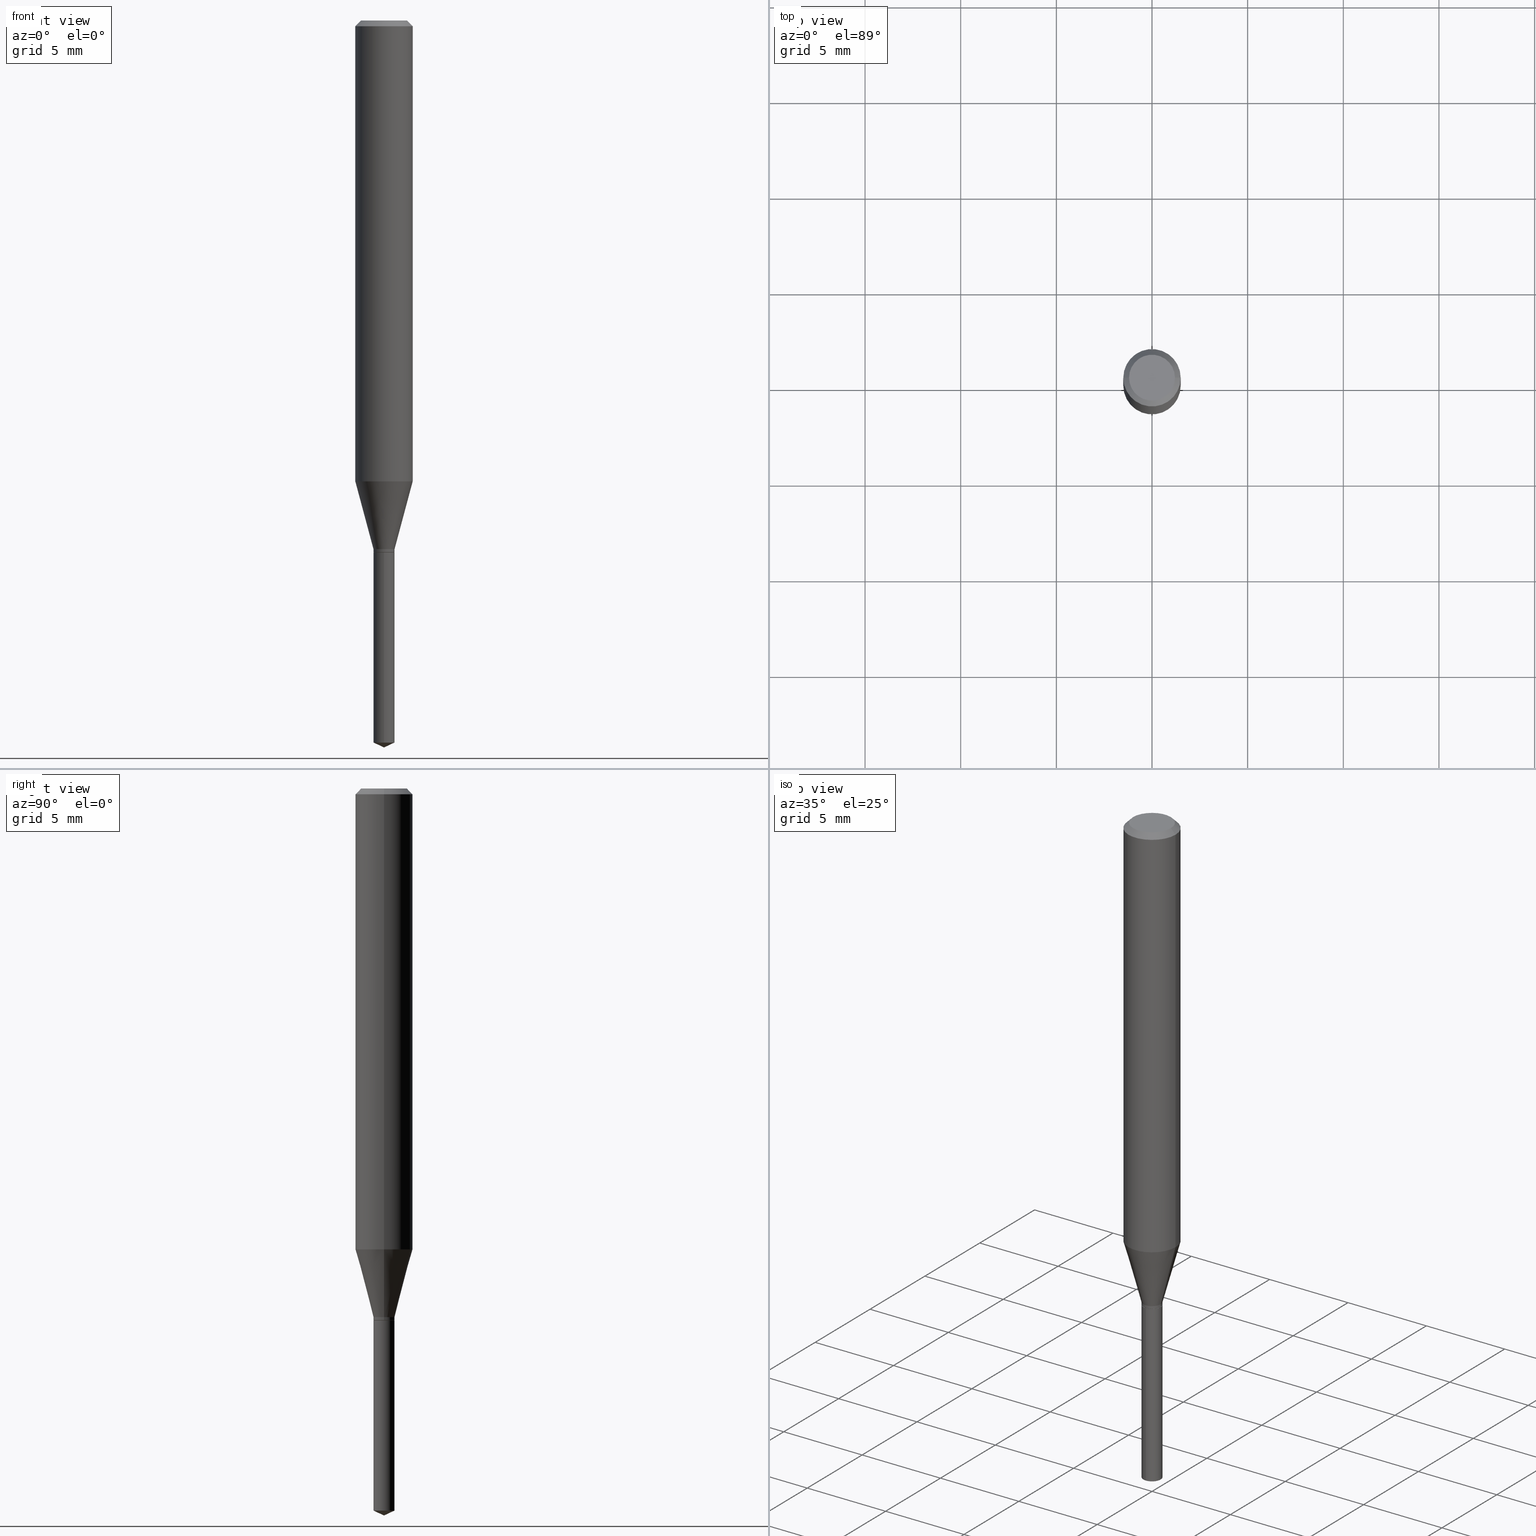
[diagram: canonical four-view strip — front | top / right | iso, engineering-drawing reading convention]
A machine part, canonical four-view strip (front | top / right | iso — engineering-drawing reading convention). The complete STEP part file that produces these views, byte-faithful:
ISO-10303-21;
HEADER;
FILE_DESCRIPTION (( 'STEP AP203' ),
    '1' );
FILE_NAME ('08333.STEP',
    '2024-04-24T14:23:46',
    ( '' ),
    ( '' ),
    'SwSTEP 2.0',
    'SolidWorks 2023',
    '' );
FILE_SCHEMA (( 'CONFIG_CONTROL_DESIGN' ));
ENDSEC;

DATA;
#1 = APPROVAL_STATUS ( 'not_yet_approved' ) ;
#2 = EDGE_CURVE ( 'NONE', #137, #91, #488, .T. ) ;
#3 = PERSON_AND_ORGANIZATION ( #108, #419 ) ;
#4 = FACE_OUTER_BOUND ( 'NONE', #165, .T. ) ;
#5 = CARTESIAN_POINT ( 'NONE',  ( -0.05905000000000005383, 4.195754854663395423E-16, -2.904631170795524694E-30 ) ) ;
#6 = AXIS2_PLACEMENT_3D ( 'NONE', #15, #19, #281 ) ;
#7 = ADVANCED_FACE ( 'NONE', ( #378 ), #336, .F. ) ;
#8 = AXIS2_PLACEMENT_3D ( 'NONE', #22, #325, #136 ) ;
#9 = ORIENTED_EDGE ( 'NONE', *, *, #173, .F. ) ;
#10 = FACE_OUTER_BOUND ( 'NONE', #17, .T. ) ;
#11 = ORIENTED_EDGE ( 'NONE', *, *, #428, .F. ) ;
#12 = SECURITY_CLASSIFICATION_LEVEL ( 'unclassified' ) ;
#13 = DIRECTION ( 'NONE',  ( 1.000000000000000000, -6.982962677686277755E-15, 0.000000000000000000 ) ) ;
#14 = ORIENTED_EDGE ( 'NONE', *, *, #412, .F. ) ;
#15 = CARTESIAN_POINT ( 'NONE',  ( 2.888098660104664642E-31, -4.123439461173780879E-17, -0.01181000000000007565 ) ) ;
#16 = CIRCLE ( 'NONE', #293, 0.02114999999999999172 ) ;
#17 = EDGE_LOOP ( 'NONE', ( #71, #283 ) ) ;
#18 = APPROVAL_PERSON_ORGANIZATION ( #456, #320, #145 ) ;
#19 = DIRECTION ( 'NONE',  ( 2.445468806185136597E-29, -3.491481338843145583E-15, -1.000000000000000000 ) ) ;
#20 = EDGE_CURVE ( 'NONE', #117, #267, #410, .T. ) ;
#21 = ORIENTED_EDGE ( 'NONE', *, *, #412, .T. ) ;
#22 = CARTESIAN_POINT ( 'NONE',  ( 2.676565608369632355E-29, -3.821426325363822773E-15, -1.094500000000000028 ) ) ;
#23 = DIRECTION ( 'NONE',  ( -2.445468806185136597E-29, 3.491481338843145583E-15, 1.000000000000000000 ) ) ;
#24 = EDGE_CURVE ( 'NONE', #91, #248, #341, .T. ) ;
#25 = DIRECTION ( 'NONE',  ( -2.445468806185136877E-29, 3.491481338843145188E-15, 1.000000000000000000 ) ) ;
#26 = AXIS2_PLACEMENT_3D ( 'NONE', #369, #258, #266 ) ;
#27 = DESIGN_CONTEXT ( 'detailed design', #288, 'design' ) ;
#28 = DIRECTION ( 'NONE',  ( 1.000000000000000000, -6.982962677686278543E-15, 0.000000000000000000 ) ) ;
#29 = DIRECTION ( 'NONE',  ( -2.445468806185136597E-29, 3.491481338843145583E-15, 1.000000000000000000 ) ) ;
#30 = APPROVAL ( #87, 'UNSPECIFIED' ) ;
#31 = DIRECTION ( 'NONE',  ( 1.000000000000000000, 0.000000000000000000, 0.000000000000000000 ) ) ;
#32 = VECTOR ( 'NONE', #482, 39.37007874015748854 ) ;
#33 = ORIENTED_EDGE ( 'NONE', *, *, #464, .T. ) ;
#34 = CARTESIAN_POINT ( 'NONE',  ( 4.132873053354867254E-48, -5.900647395337818946E-34, -1.690012582823346072E-19 ) ) ;
#35 = DIRECTION ( 'NONE',  ( 1.000000000000000000, -6.982962677686266711E-15, 4.876185090822587894E-29 ) ) ;
#36 = ORIENTED_EDGE ( 'NONE', *, *, #122, .F. ) ;
#37 = CC_DESIGN_PERSON_AND_ORGANIZATION_ASSIGNMENT ( #485, #301, ( #307 ) ) ;
#38 = CARTESIAN_POINT ( 'NONE',  ( 8.265746106709734507E-48, -1.180129479067563789E-33, -3.380025165646692144E-19 ) ) ;
#39 = DIRECTION ( 'NONE',  ( -1.000000000000000000, 6.982962677686265922E-15, -4.876176775795935793E-29 ) ) ;
#40 = AXIS2_PLACEMENT_3D ( 'NONE', #232, #384, #47 ) ;
#41 = VECTOR ( 'NONE', #25, 39.37007874015748143 ) ;
#42 = LINE ( 'NONE', #147, #131 ) ;
#43 = PERSON_AND_ORGANIZATION ( #108, #419 ) ;
#44 = CARTESIAN_POINT ( 'NONE',  ( -0.02114999999999999172, -3.668497309576451157E-15, -1.094500000000000028 ) ) ;
#45 = ADVANCED_FACE ( 'NONE', ( #4 ), #101, .T. ) ;
#46 = PERSON_AND_ORGANIZATION ( #108, #419 ) ;
#47 = DIRECTION ( 'NONE',  ( 1.000000000000000000, -6.982962677686277755E-15, 0.000000000000000000 ) ) ;
#48 = AXIS2_PLACEMENT_3D ( 'NONE', #205, #323, #160 ) ;
#49 = AXIS2_PLACEMENT_3D ( 'NONE', #109, #255, #68 ) ;
#50 = EDGE_LOOP ( 'NONE', ( #231, #418, #324, #299 ) ) ;
#51 = APPROVAL_STATUS ( 'not_yet_approved' ) ;
#52 = DIRECTION ( 'NONE',  ( 1.000000000000000000, -6.982962677686267499E-15, 4.876176775795935232E-29 ) ) ;
#53 = EDGE_LOOP ( 'NONE', ( #227, #14, #257, #217 ) ) ;
#54 = DATE_AND_TIME ( #385, #240 ) ;
#55 = ORIENTED_EDGE ( 'NONE', *, *, #142, .F. ) ;
#56 = LINE ( 'NONE', #199, #221 ) ;
#57 = ORIENTED_EDGE ( 'NONE', *, *, #215, .F. ) ;
#58 = EDGE_CURVE ( 'NONE', #186, #140, #297, .T. ) ;
#59 = CARTESIAN_POINT ( 'NONE',  ( 0.04724000000000000421, -3.852183633974369838E-16, -3.380025165621689721E-19 ) ) ;
#60 = CONICAL_SURFACE ( 'NONE', #103, 0.02114999999999999172, 0.7853981633972519916 ) ;
#61 = ORIENTED_EDGE ( 'NONE', *, *, #251, .T. ) ;
#62 = CARTESIAN_POINT ( 'NONE',  ( 2.676565608369631794E-29, -3.821426325363822773E-15, -1.094499999999999806 ) ) ;
#63 = ORIENTED_EDGE ( 'NONE', *, *, #334, .F. ) ;
#64 = DIRECTION ( 'NONE',  ( -2.445468806185136597E-29, 3.491481338843145583E-15, 1.000000000000000000 ) ) ;
#65 = ADVANCED_FACE ( 'NONE', ( #259 ), #78, .T. ) ;
#66 = CARTESIAN_POINT ( 'NONE',  ( 0.000000000000000000, 0.000000000000000000, 0.000000000000000000 ) ) ;
#67 = VECTOR ( 'NONE', #342, 39.37007874015748143 ) ;
#68 = DIRECTION ( 'NONE',  ( 1.000000000000000000, -6.982962677686268288E-15, 0.000000000000000000 ) ) ;
#69 = VECTOR ( 'NONE', #375, 39.37007874015748143 ) ;
#70 = DIRECTION ( 'NONE',  ( 1.000000000000000000, -6.982962677686277755E-15, 0.000000000000000000 ) ) ;
#71 = ORIENTED_EDGE ( 'NONE', *, *, #115, .T. ) ;
#72 = ORIENTED_EDGE ( 'NONE', *, *, #449, .F. ) ;
#73 = EDGE_CURVE ( 'NONE', #176, #91, #380, .T. ) ;
#74 = DIRECTION ( 'NONE',  ( -1.000000000000000000, 6.982962677686265922E-15, 0.000000000000000000 ) ) ;
#75 = CARTESIAN_POINT ( 'NONE',  ( -9.261705871415894043E-28, 1.322399773465276608E-13, 37.87397874015748300 ) ) ;
#76 = AXIS2_PLACEMENT_3D ( 'NONE', #242, #332, #28 ) ;
#77 = AXIS2_PLACEMENT_3D ( 'NONE', #38, #113, #35 ) ;
#78 = CYLINDRICAL_SURFACE ( 'NONE', #253, 0.02164999999999996788 ) ;
#79 = EDGE_CURVE ( 'NONE', #152, #455, #406, .T. ) ;
#80 = DIMENSIONAL_EXPONENTS ( 1.000000000000000000, 0.000000000000000000, 0.000000000000000000, 0.000000000000000000, 0.000000000000000000, 0.000000000000000000, 0.000000000000000000 ) ;
#81 = CARTESIAN_POINT ( 'NONE',  ( 0.02114999999999999172, -3.969115985996887497E-15, -1.094500000000000028 ) ) ;
#82 = CARTESIAN_POINT ( 'NONE',  ( 0.02114999999999999172, -3.969115985996887497E-15, -1.094500000000000028 ) ) ;
#83 = CARTESIAN_POINT ( 'NONE',  ( -0.02164999999999996788, 1.538325022920614620E-16, -1.064949447040185625E-30 ) ) ;
#84 = AXIS2_PLACEMENT_3D ( 'NONE', #403, #409, #175 ) ;
#85 = ADVANCED_FACE ( 'NONE', ( #469 ), #306, .T. ) ;
#86 = FACE_OUTER_BOUND ( 'NONE', #50, .T. ) ;
#87 = APPROVAL_STATUS ( 'not_yet_approved' ) ;
#88 = CARTESIAN_POINT ( 'NONE',  ( 1.538325022920980454E-16, 0.02164999999999617578, -1.094500000000000028 ) ) ;
#89 = ORIENTED_EDGE ( 'NONE', *, *, #73, .F. ) ;
#90 = PERSON_AND_ORGANIZATION_ROLE ( 'classification_officer' ) ;
#91 = VERTEX_POINT ( 'NONE', #318 ) ;
#92 = CARTESIAN_POINT ( 'NONE',  ( 2.676565608369631794E-29, -3.821426325363822773E-15, -1.094499999999999806 ) ) ;
#93 = ORIENTED_EDGE ( 'NONE', *, *, #444, .T. ) ;
#94 = DATE_AND_TIME ( #159, #116 ) ;
#95 = DIRECTION ( 'NONE',  ( 1.000000000000000000, -6.982962677686269077E-15, 0.000000000000000000 ) ) ;
#96 = CC_DESIGN_PERSON_AND_ORGANIZATION_ASSIGNMENT ( #383, #90, ( #371 ) ) ;
#97 = VERTEX_POINT ( 'NONE', #88 ) ;
#98 = CARTESIAN_POINT ( 'NONE',  ( 0.000000000000000000, 0.000000000000000000, 0.000000000000000000 ) ) ;
#99 = ORIENTED_EDGE ( 'NONE', *, *, #339, .T. ) ;
#100 = CARTESIAN_POINT ( 'NONE',  ( -2.259394599611891373E-29, -1.089000228060149958E-14, -1.094500000000000028 ) ) ;
#101 = CONICAL_SURFACE ( 'NONE', #370, 84.42940631927777417, 1.134464013796331550 ) ;
#102 = ORIENTED_EDGE ( 'NONE', *, *, #464, .F. ) ;
#103 = AXIS2_PLACEMENT_3D ( 'NONE', #292, #178, #174 ) ;
#104 = EDGE_CURVE ( 'NONE', #267, #140, #430, .T. ) ;
#105 = FACE_OUTER_BOUND ( 'NONE', #411, .T. ) ;
#106 = CARTESIAN_POINT ( 'NONE',  ( 0.05905000000000005383, -4.123439461173744271E-16, 2.879382386107502672E-30 ) ) ;
#107 = CYLINDRICAL_SURFACE ( 'NONE', #354, 0.02164999999999999564 ) ;
#108 = PERSON ( 'UNSPECIFIED', 'UNSPECIFIED', 'UNSPECIFIED', ('UNSPECIFIED'), ('UNSPECIFIED'), ('UNSPECIFIED') ) ;
#109 = CARTESIAN_POINT ( 'NONE',  ( 2.319334703774938561E-29, -3.311395269602319629E-15, -0.9484212997969236891 ) ) ;
#110 = CC_DESIGN_SECURITY_CLASSIFICATION ( #371, ( #401 ) ) ;
#111 = ADVANCED_FACE ( 'NONE', ( #313 ), #235, .T. ) ;
#112 = DIRECTION ( 'NONE',  ( -0.7071067811865454633, 2.468850131082235367E-15, -0.7071067811865495711 ) ) ;
#113 = DIRECTION ( 'NONE',  ( -2.445468806185136597E-29, 3.491481338843145583E-15, 1.000000000000000000 ) ) ;
#114 = CIRCLE ( 'NONE', #76, 0.02164999999999996788 ) ;
#115 = EDGE_CURVE ( 'NONE', #373, #97, #483, .T. ) ;
#116 = LOCAL_TIME ( 10, 23, 46.00000000000000000, #128 ) ;
#117 = VERTEX_POINT ( 'NONE', #59 ) ;
#118 = LINE ( 'NONE', #372, #69 ) ;
#119 = CARTESIAN_POINT ( 'NONE',  ( -0.02114999999999999172, -3.671146536750561569E-15, -1.094500000000000028 ) ) ;
#120 = DIRECTION ( 'NONE',  ( 1.000000000000000000, -6.982962677686268288E-15, 0.000000000000000000 ) ) ;
#121 = DIRECTION ( 'NONE',  ( 2.438088387897960049E-29, -3.491481338843145188E-15, -1.000000000000000000 ) ) ;
#122 = EDGE_CURVE ( 'NONE', #137, #425, #124, .T. ) ;
#123 = DIRECTION ( 'NONE',  ( -2.445468806185136597E-29, 3.491481338843145583E-15, 1.000000000000000000 ) ) ;
#124 = CIRCLE ( 'NONE', #261, 0.02114999999999999172 ) ;
#125 = CARTESIAN_POINT ( 'NONE',  ( -0.04724000000000000421, 3.504923541997677355E-16, -3.380025165670481712E-19 ) ) ;
#126 = CARTESIAN_POINT ( 'NONE',  ( -1.511811419718712709E-16, -0.02165000000000518246, -1.486004439200944605 ) ) ;
#127 = EDGE_LOOP ( 'NONE', ( #413, #481, #89, #357 ) ) ;
#128 = COORDINATED_UNIVERSAL_TIME_OFFSET ( 5, 0, .BEHIND. ) ;
#129 = DIRECTION ( 'NONE',  ( 6.982962677686265922E-15, 1.000000000000000000, -3.491575962694140016E-15 ) ) ;
#130 = ADVANCED_FACE ( 'NONE', ( #315 ), #363, .T. ) ;
#131 = VECTOR ( 'NONE', #451, 39.37007874015748143 ) ;
#132 = DIRECTION ( 'NONE',  ( -6.982962677686265922E-15, -1.000000000000000000, 0.000000000000000000 ) ) ;
#133 = VERTEX_POINT ( 'NONE', #422 ) ;
#134 = DIRECTION ( 'NONE',  ( 1.000000000000000000, -6.982962677686265922E-15, 4.876176775795935793E-29 ) ) ;
#135 = ADVANCED_FACE ( 'NONE', ( #86 ), #168, .T. ) ;
#136 = DIRECTION ( 'NONE',  ( 1.000000000000000000, -6.982962677686269077E-15, 0.000000000000000000 ) ) ;
#137 = VERTEX_POINT ( 'NONE', #44 ) ;
#138 = FACE_OUTER_BOUND ( 'NONE', #467, .T. ) ;
#139 = DIRECTION ( 'NONE',  ( 1.000000000000000000, -6.982962677686266711E-15, 4.876185090822587894E-29 ) ) ;
#140 = VERTEX_POINT ( 'NONE', #201 ) ;
#141 = DIRECTION ( 'NONE',  ( -2.445468806185136597E-29, 3.491481338843145583E-15, 1.000000000000000000 ) ) ;
#142 = EDGE_CURVE ( 'NONE', #455, #97, #56, .T. ) ;
#143 = AXIS2_PLACEMENT_3D ( 'NONE', #92, #172, #397 ) ;
#144 = AXIS2_PLACEMENT_3D ( 'NONE', #404, #29, #70 ) ;
#145 = APPROVAL_ROLE ( '' ) ;
#146 = DIRECTION ( 'NONE',  ( -6.982962677686266711E-15, -1.000000000000000000, 3.520397390770310692E-15 ) ) ;
#147 = CARTESIAN_POINT ( 'NONE',  ( -0.02164999999999997135, -3.644899194369281124E-15, -1.088000000000000078 ) ) ;
#148 = DIRECTION ( 'NONE',  ( -2.445402730703145379E-29, 3.491575962694140016E-15, 1.000000000000000000 ) ) ;
#149 = MANIFOLD_SOLID_BREP ( 'Body-Move/Copy2[2]', #335 ) ;
#150 = CLOSED_SHELL ( 'NONE', ( #435, #130, #45, #228, #196 ) ) ;
#151 = AXIS2_PLACEMENT_3D ( 'NONE', #62, #358, #285 ) ;
#152 = VERTEX_POINT ( 'NONE', #126 ) ;
#153 = APPROVAL_ROLE ( '' ) ;
#154 = PRODUCT_DEFINITION ( 'UNKNOWN', '', #401, #27 ) ;
#155 = CARTESIAN_POINT ( 'NONE',  ( 2.319334703774938561E-29, -3.311395269602319629E-15, -0.9484212997969236891 ) ) ;
#156 = VECTOR ( 'NONE', #459, 39.37007874015748143 ) ;
#157 = APPROVAL_PERSON_ORGANIZATION ( #46, #484, #153 ) ;
#158 = ORIENTED_EDGE ( 'NONE', *, *, #374, .F. ) ;
#159 = CALENDAR_DATE ( 2024, 24, 4 ) ;
#160 = DIRECTION ( 'NONE',  ( 1.000000000000000000, -6.982962677686278543E-15, 0.000000000000000000 ) ) ;
#161 = VERTEX_POINT ( 'NONE', #345 ) ;
#162 = SHAPE_DEFINITION_REPRESENTATION ( #233, #470 ) ;
#163 = EDGE_CURVE ( 'NONE', #274, #140, #276, .T. ) ;
#164 = DIRECTION ( 'NONE',  ( 2.445402730703145099E-29, -3.491575962694140016E-15, -1.000000000000000000 ) ) ;
#165 = EDGE_LOOP ( 'NONE', ( #11, #61, #203 ) ) ;
#166 = DATE_AND_TIME ( #275, #453 ) ;
#167 = DIRECTION ( 'NONE',  ( 1.000000000000000000, -6.982962677686268288E-15, 0.000000000000000000 ) ) ;
#168 = CONICAL_SURFACE ( 'NONE', #40, 0.02164999999999997135, 0.2617993877991497964 ) ;
#169 = AXIS2_PLACEMENT_3D ( 'NONE', #98, #123, #244 ) ;
#170 = AXIS2_PLACEMENT_3D ( 'NONE', #381, #191, #74 ) ;
#171 = EDGE_LOOP ( 'NONE', ( #220, #99, #429, #9 ) ) ;
#172 = DIRECTION ( 'NONE',  ( -2.445402730703145379E-29, 3.491575962694140016E-15, 1.000000000000000000 ) ) ;
#173 = EDGE_CURVE ( 'NONE', #274, #161, #452, .T. ) ;
#174 = DIRECTION ( 'NONE',  ( 1.000000000000000000, -6.982962677686269077E-15, 0.000000000000000000 ) ) ;
#175 = DIRECTION ( 'NONE',  ( -6.982962677686265922E-15, -1.000000000000000000, 0.000000000000000000 ) ) ;
#176 = VERTEX_POINT ( 'NONE', #462 ) ;
#177 = LOCAL_TIME ( 10, 23, 46.00000000000000000, #312 ) ;
#178 = DIRECTION ( 'NONE',  ( -2.445468806185136597E-29, 3.491481338843145583E-15, 1.000000000000000000 ) ) ;
#179 = CC_DESIGN_PERSON_AND_ORGANIZATION_ASSIGNMENT ( #237, #426, ( #401 ) ) ;
#180 = CARTESIAN_POINT ( 'NONE',  ( 2.660670061129428738E-29, -3.798731696661342438E-15, -1.088000000000000078 ) ) ;
#181 = ORIENTED_EDGE ( 'NONE', *, *, #458, .F. ) ;
#182 = FACE_OUTER_BOUND ( 'NONE', #360, .T. ) ;
#183 = AXIS2_PLACEMENT_3D ( 'NONE', #155, #310, #347 ) ;
#184 = APPROVAL_PERSON_ORGANIZATION ( #234, #30, #198 ) ;
#185 = FACE_OUTER_BOUND ( 'NONE', #353, .T. ) ;
#186 = VERTEX_POINT ( 'NONE', #125 ) ;
#187 = EDGE_CURVE ( 'NONE', #133, #248, #379, .T. ) ;
#188 = CARTESIAN_POINT ( 'NONE',  ( 0.000000000000000000, 0.000000000000000000, 0.000000000000000000 ) ) ;
#189 =( NAMED_UNIT ( * ) SI_UNIT ( $, .STERADIAN. ) SOLID_ANGLE_UNIT ( ) );
#190 = ORIENTED_EDGE ( 'NONE', *, *, #163, .F. ) ;
#191 = DIRECTION ( 'NONE',  ( 2.445468806185136597E-29, -3.491481338843145583E-15, -1.000000000000000000 ) ) ;
#192 = VECTOR ( 'NONE', #112, 39.37007874015748143 ) ;
#193 = CONICAL_SURFACE ( 'NONE', #441, 0.02164999999999997135, 0.2617993877991497964 ) ;
#194 = CARTESIAN_POINT ( 'NONE',  ( 0.05905000000000000526, -4.463468013801467941E-16, -0.01181000000000007565 ) ) ;
#195 = APPROVAL_DATE_TIME ( #94, #320 ) ;
#196 = ADVANCED_FACE ( 'NONE', ( #10 ), #391, .F. ) ;
#197 = EDGE_LOOP ( 'NONE', ( #21, #93 ) ) ;
#198 = APPROVAL_ROLE ( '' ) ;
#199 = CARTESIAN_POINT ( 'NONE',  ( 1.538325022920883819E-16, 0.02164999999999617578, -1.094500000000000028 ) ) ;
#200 = CALENDAR_DATE ( 2024, 24, 4 ) ;
#201 = CARTESIAN_POINT ( 'NONE',  ( -0.05905000000000000526, -1.256739346640688792E-15, -0.01181000000000007565 ) ) ;
#202 = EDGE_CURVE ( 'NONE', #425, #137, #16, .T. ) ;
#203 = ORIENTED_EDGE ( 'NONE', *, *, #246, .F. ) ;
#204 = APPROVAL_DATE_TIME ( #308, #484 ) ;
#205 = CARTESIAN_POINT ( 'NONE',  ( 2.675342873966538993E-29, -3.819680584694400481E-15, -1.093999999999999861 ) ) ;
#206 = CARTESIAN_POINT ( 'NONE',  ( 2.660670061129428738E-29, -3.798731696661342438E-15, -1.088000000000000078 ) ) ;
#207 = EDGE_LOOP ( 'NONE', ( #241, #225, #438 ) ) ;
#208 = CARTESIAN_POINT ( 'NONE',  ( 2.676565608369632355E-29, -3.821426325363822773E-15, -1.094500000000000028 ) ) ;
#209 = CIRCLE ( 'NONE', #84, 0.02164999999999999564 ) ;
#210 = ORIENTED_EDGE ( 'NONE', *, *, #104, .F. ) ;
#211 = CARTESIAN_POINT ( 'NONE',  ( 2.676565608369631794E-29, -3.821426325363822773E-15, -1.094499999999999806 ) ) ;
#212 = ORIENTED_EDGE ( 'NONE', *, *, #202, .F. ) ;
#213 = DIRECTION ( 'NONE',  ( -2.445402730703145379E-29, 3.491575962694140016E-15, 1.000000000000000000 ) ) ;
#214 = FACE_OUTER_BOUND ( 'NONE', #171, .T. ) ;
#215 = EDGE_CURVE ( 'NONE', #91, #176, #114, .T. ) ;
#216 = DIRECTION ( 'NONE',  ( -2.445468806185136597E-29, 3.491481338843145583E-15, 1.000000000000000000 ) ) ;
#217 = ORIENTED_EDGE ( 'NONE', *, *, #449, .T. ) ;
#218 = DIRECTION ( 'NONE',  ( -6.328713451373419077E-15, -0.9063077870366557098, 0.4226182617406868403 ) ) ;
#219 = ORIENTED_EDGE ( 'NONE', *, *, #73, .T. ) ;
#220 = ORIENTED_EDGE ( 'NONE', *, *, #477, .F. ) ;
#221 = VECTOR ( 'NONE', #349, 39.37007874015748143 ) ;
#222 = CIRCLE ( 'NONE', #49, 0.05905000000000010241 ) ;
#223 = MECHANICAL_CONTEXT ( 'NONE', #260, 'mechanical' ) ;
#224 =( CONVERSION_BASED_UNIT ( 'INCH', #487 ) LENGTH_UNIT ( ) NAMED_UNIT ( #80 ) );
#225 = ORIENTED_EDGE ( 'NONE', *, *, #428, .T. ) ;
#226 = DIRECTION ( 'NONE',  ( -2.445402730703145379E-29, 3.491575962694140016E-15, 1.000000000000000000 ) ) ;
#227 = ORIENTED_EDGE ( 'NONE', *, *, #20, .F. ) ;
#228 = ADVANCED_FACE ( 'NONE', ( #138 ), #107, .T. ) ;
#229 = AXIS2_PLACEMENT_3D ( 'NONE', #269, #386, #355 ) ;
#230 = CYLINDRICAL_SURFACE ( 'NONE', #26, 0.02164999999999999564 ) ;
#231 = ORIENTED_EDGE ( 'NONE', *, *, #187, .T. ) ;
#232 = CARTESIAN_POINT ( 'NONE',  ( 2.660670061129428738E-29, -3.798731696661342438E-15, -1.088000000000000078 ) ) ;
#233 = PRODUCT_DEFINITION_SHAPE ( 'NONE', 'NONE',  #154 ) ;
#234 = PERSON_AND_ORGANIZATION ( #108, #419 ) ;
#235 = CYLINDRICAL_SURFACE ( 'NONE', #169, 0.05905000000000005383 ) ;
#236 = ORIENTED_EDGE ( 'NONE', *, *, #173, .T. ) ;
#237 = PERSON_AND_ORGANIZATION ( #108, #419 ) ;
#238 = DIRECTION ( 'NONE',  ( -2.445468806185136877E-29, 3.491481338843145188E-15, 1.000000000000000000 ) ) ;
#239 = AXIS2_PLACEMENT_3D ( 'NONE', #368, #141, #472 ) ;
#240 = LOCAL_TIME ( 10, 23, 46.00000000000000000, #270 ) ;
#241 = ORIENTED_EDGE ( 'NONE', *, *, #251, .F. ) ;
#242 = CARTESIAN_POINT ( 'NONE',  ( 2.675342873966538993E-29, -3.819680584694400481E-15, -1.093999999999999861 ) ) ;
#243 = COORDINATED_UNIVERSAL_TIME_OFFSET ( 5, 0, .BEHIND. ) ;
#244 = DIRECTION ( 'NONE',  ( 1.000000000000000000, -6.982962677686266711E-15, 4.876176775795935793E-29 ) ) ;
#245 = ORIENTED_EDGE ( 'NONE', *, *, #302, .T. ) ;
#246 = EDGE_CURVE ( 'NONE', #455, #152, #209, .T. ) ;
#247 = CYLINDRICAL_SURFACE ( 'NONE', #460, 0.02164999999999996788 ) ;
#248 = VERTEX_POINT ( 'NONE', #361 ) ;
#249 = CARTESIAN_POINT ( 'NONE',  ( 0.02164999999999997135, -3.949912838633250169E-15, -1.088000000000000078 ) ) ;
#250 = FACE_OUTER_BOUND ( 'NONE', #395, .T. ) ;
#251 = EDGE_CURVE ( 'NONE', #322, #152, #290, .T. ) ;
#252 = DIRECTION ( 'NONE',  ( 0.2588190451025211281, 1.565188264969623940E-15, 0.9659258262890682012 ) ) ;
#253 = AXIS2_PLACEMENT_3D ( 'NONE', #188, #338, #52 ) ;
#254 = VECTOR ( 'NONE', #252, 39.37007874015748143 ) ;
#255 = DIRECTION ( 'NONE',  ( -2.445468806185136597E-29, 3.491481338843145583E-15, 1.000000000000000000 ) ) ;
#256 = CC_DESIGN_PERSON_AND_ORGANIZATION_ASSIGNMENT ( #43, #389, ( #401 ) ) ;
#257 = ORIENTED_EDGE ( 'NONE', *, *, #58, .T. ) ;
#258 = DIRECTION ( 'NONE',  ( -2.445402730703145379E-29, 3.491575962694140016E-15, 1.000000000000000000 ) ) ;
#259 = FACE_OUTER_BOUND ( 'NONE', #471, .T. ) ;
#260 = APPLICATION_CONTEXT ( 'configuration controlled 3d designs of mechanical parts and assemblies' ) ;
#261 = AXIS2_PLACEMENT_3D ( 'NONE', #208, #424, #465 ) ;
#262 = CIRCLE ( 'NONE', #77, 0.04724000000000000421 ) ;
#263 = CARTESIAN_POINT ( 'NONE',  ( -1.511811419718808852E-16, -0.02165000000000381897, -1.094499999999999806 ) ) ;
#264 = CARTESIAN_POINT ( 'NONE',  ( 1.538325022920979468E-16, 0.02164999999999480187, -1.486004439200944605 ) ) ;
#265 = ADVANCED_FACE ( 'NONE', ( #250 ), #365, .T. ) ;
#266 = DIRECTION ( 'NONE',  ( -6.982962677686265922E-15, -1.000000000000000000, 6.309117768277745325E-15 ) ) ;
#267 = VERTEX_POINT ( 'NONE', #476 ) ;
#268 = PERSON_AND_ORGANIZATION_ROLE ( 'creator' ) ;
#269 = CARTESIAN_POINT ( 'NONE',  ( -9.261705871415894043E-28, 1.322399773465276608E-13, 37.87397874015748300 ) ) ;
#270 = COORDINATED_UNIVERSAL_TIME_OFFSET ( 5, 0, .BEHIND. ) ;
#271 = PRODUCT_RELATED_PRODUCT_CATEGORY ( 'detail', '', ( #307 ) ) ;
#272 = DIRECTION ( 'NONE',  ( -2.445468806185136597E-29, 3.491481338843145583E-15, 1.000000000000000000 ) ) ;
#273 = UNCERTAINTY_MEASURE_WITH_UNIT (LENGTH_MEASURE( 1.000000000000000082E-05 ), #224, 'distance_accuracy_value', 'NONE');
#274 = VERTEX_POINT ( 'NONE', #284 ) ;
#275 = CALENDAR_DATE ( 2024, 24, 4 ) ;
#276 = LINE ( 'NONE', #5, #328 ) ;
#277 = ORIENTED_EDGE ( 'NONE', *, *, #24, .T. ) ;
#278 = CARTESIAN_POINT ( 'NONE',  ( 2.676565608369632355E-29, -3.821426325363822773E-15, -1.094500000000000028 ) ) ;
#279 = AXIS2_PLACEMENT_3D ( 'NONE', #298, #304, #31 ) ;
#280 = EDGE_LOOP ( 'NONE', ( #350, #314, #305, #57 ) ) ;
#281 = DIRECTION ( 'NONE',  ( -1.000000000000000000, 6.982962677686265922E-15, 0.000000000000000000 ) ) ;
#282 = ADVANCED_FACE ( 'NONE', ( #405 ), #60, .T. ) ;
#283 = ORIENTED_EDGE ( 'NONE', *, *, #374, .T. ) ;
#284 = CARTESIAN_POINT ( 'NONE',  ( -0.05905000000000010241, -2.891819784135979347E-15, -0.9484212997969236891 ) ) ;
#285 = DIRECTION ( 'NONE',  ( -6.982962677686265922E-15, -1.000000000000000000, 6.309117768277745325E-15 ) ) ;
#286 = AXIS2_PLACEMENT_3D ( 'NONE', #466, #164, #129 ) ;
#287 = AXIS2_PLACEMENT_3D ( 'NONE', #337, #416, #120 ) ;
#288 = APPLICATION_CONTEXT ( 'configuration controlled 3d designs of mechanical parts and assemblies' ) ;
#289 = ADVANCED_FACE ( 'NONE', ( #214 ), #193, .T. ) ;
#290 = LINE ( 'NONE', #327, #388 ) ;
#291 = DIRECTION ( 'NONE',  ( -2.438088387897960049E-29, 3.491481338843145188E-15, 1.000000000000000000 ) ) ;
#292 = CARTESIAN_POINT ( 'NONE',  ( 2.676565608369632355E-29, -3.821426325363822773E-15, -1.094500000000000028 ) ) ;
#293 = AXIS2_PLACEMENT_3D ( 'NONE', #278, #432, #95 ) ;
#294 = CONICAL_SURFACE ( 'NONE', #8, 0.02114999999999999172, 0.7853981633972519916 ) ;
#295 = LINE ( 'NONE', #333, #32 ) ;
#296 =( LENGTH_UNIT ( ) NAMED_UNIT ( * ) SI_UNIT ( $, .METRE. ) );
#297 = LINE ( 'NONE', #450, #192 ) ;
#298 = CARTESIAN_POINT ( 'NONE',  ( 0.000000000000000000, 0.000000000000000000, 0.000000000000000000 ) ) ;
#299 = ORIENTED_EDGE ( 'NONE', *, *, #399, .F. ) ;
#300 = LOCAL_TIME ( 10, 23, 46.00000000000000000, #317 ) ;
#301 = PERSON_AND_ORGANIZATION_ROLE ( 'design_owner' ) ;
#302 = EDGE_CURVE ( 'NONE', #161, #274, #222, .T. ) ;
#303 = ORIENTED_EDGE ( 'NONE', *, *, #104, .T. ) ;
#304 = DIRECTION ( 'NONE',  ( 0.000000000000000000, 0.000000000000000000, 1.000000000000000000 ) ) ;
#305 = ORIENTED_EDGE ( 'NONE', *, *, #420, .T. ) ;
#306 = CONICAL_SURFACE ( 'NONE', #6, 0.05905000000000000526, 0.7853981633974453924 ) ;
#307 = PRODUCT ( '08333', '08333', '', ( #223 ) ) ;
#308 = DATE_AND_TIME ( #200, #300 ) ;
#309 = VECTOR ( 'NONE', #226, 39.37007874015748143 ) ;
#310 = DIRECTION ( 'NONE',  ( -2.445468806185136597E-29, 3.491481338843145583E-15, 1.000000000000000000 ) ) ;
#311 = ORIENTED_EDGE ( 'NONE', *, *, #24, .F. ) ;
#312 = COORDINATED_UNIVERSAL_TIME_OFFSET ( 5, 0, .BEHIND. ) ;
#313 = FACE_OUTER_BOUND ( 'NONE', #376, .T. ) ;
#314 = ORIENTED_EDGE ( 'NONE', *, *, #122, .T. ) ;
#315 = FACE_OUTER_BOUND ( 'NONE', #207, .T. ) ;
#316 = ORIENTED_EDGE ( 'NONE', *, *, #334, .T. ) ;
#317 = COORDINATED_UNIVERSAL_TIME_OFFSET ( 5, 0, .BEHIND. ) ;
#318 = CARTESIAN_POINT ( 'NONE',  ( -0.02164999999999996788, -3.655373638385810145E-15, -1.093999999999999861 ) ) ;
#319 = VECTOR ( 'NONE', #486, 39.37007874015748143 ) ;
#320 = APPROVAL ( #1, 'UNSPECIFIED' ) ;
#321 =( GEOMETRIC_REPRESENTATION_CONTEXT ( 3 ) GLOBAL_UNCERTAINTY_ASSIGNED_CONTEXT ( ( #273 ) ) GLOBAL_UNIT_ASSIGNED_CONTEXT ( ( #224, #417, #189 ) ) REPRESENTATION_CONTEXT ( 'NONE', 'WORKASPACE' ) );
#322 = VERTEX_POINT ( 'NONE', #437 ) ;
#323 = DIRECTION ( 'NONE',  ( -2.445468806185136597E-29, 3.491481338843145583E-15, 1.000000000000000000 ) ) ;
#324 = ORIENTED_EDGE ( 'NONE', *, *, #302, .F. ) ;
#325 = DIRECTION ( 'NONE',  ( -2.445468806185136597E-29, 3.491481338843145583E-15, 1.000000000000000000 ) ) ;
#326 = ORIENTED_EDGE ( 'NONE', *, *, #20, .T. ) ;
#327 = CARTESIAN_POINT ( 'NONE',  ( 3.658567025404975087E-29, -5.223746797786701947E-15, -1.496099999999999985 ) ) ;
#328 = VECTOR ( 'NONE', #238, 39.37007874015748143 ) ;
#329 = CIRCLE ( 'NONE', #468, 0.04724000000000000421 ) ;
#330 = LINE ( 'NONE', #249, #254 ) ;
#331 = ORIENTED_EDGE ( 'NONE', *, *, #187, .F. ) ;
#332 = DIRECTION ( 'NONE',  ( -2.445468806185136597E-29, 3.491481338843145583E-15, 1.000000000000000000 ) ) ;
#333 = CARTESIAN_POINT ( 'NONE',  ( 3.658712932950369103E-29, -5.223539666176875291E-15, -1.496099999999999985 ) ) ;
#334 = EDGE_CURVE ( 'NONE', #161, #267, #475, .T. ) ;
#335 = CLOSED_SHELL ( 'NONE', ( #282, #85, #265, #135, #65, #367, #289, #111, #473, #7, #359, #392 ) ) ;
#336 = PLANE ( 'NONE',  #490 ) ;
#337 = CARTESIAN_POINT ( 'NONE',  ( 2.888098660104664642E-31, -4.123439461173780879E-17, -0.01181000000000007565 ) ) ;
#338 = DIRECTION ( 'NONE',  ( -2.445468806185136597E-29, 3.491481338843145583E-15, 1.000000000000000000 ) ) ;
#339 = EDGE_CURVE ( 'NONE', #248, #133, #356, .T. ) ;
#340 = CC_DESIGN_APPROVAL ( #484, ( #371 ) ) ;
#341 = LINE ( 'NONE', #83, #67 ) ;
#342 = DIRECTION ( 'NONE',  ( -2.445468806185136877E-29, 3.491481338843145188E-15, 1.000000000000000000 ) ) ;
#343 = CC_DESIGN_PERSON_AND_ORGANIZATION_ASSIGNMENT ( #3, #268, ( #154 ) ) ;
#344 = DATE_TIME_ROLE ( 'classification_date' ) ;
#345 = CARTESIAN_POINT ( 'NONE',  ( 0.05905000000000010241, -3.723739215719694549E-15, -0.9484212997969236891 ) ) ;
#346 = VECTOR ( 'NONE', #415, 39.37007874015748143 ) ;
#347 = DIRECTION ( 'NONE',  ( 1.000000000000000000, -6.982962677686268288E-15, 0.000000000000000000 ) ) ;
#348 = ORIENTED_EDGE ( 'NONE', *, *, #444, .F. ) ;
#349 = DIRECTION ( 'NONE',  ( -2.445402730703145379E-29, 3.491575962694140016E-15, 1.000000000000000000 ) ) ;
#350 = ORIENTED_EDGE ( 'NONE', *, *, #2, .F. ) ;
#351 = CC_DESIGN_DATE_AND_TIME_ASSIGNMENT ( #421, #461, ( #154 ) ) ;
#352 = CARTESIAN_POINT ( 'NONE',  ( 3.633951633074026465E-29, -5.188393814565889832E-15, -1.486004439200944605 ) ) ;
#353 = EDGE_LOOP ( 'NONE', ( #382, #433, #402, #102 ) ) ;
#354 = AXIS2_PLACEMENT_3D ( 'NONE', #211, #213, #480 ) ;
#355 = DIRECTION ( 'NONE',  ( -6.982962677686266711E-15, -1.000000000000000000, 3.520397390770310692E-15 ) ) ;
#356 = CIRCLE ( 'NONE', #144, 0.02164999999999997135 ) ;
#357 = ORIENTED_EDGE ( 'NONE', *, *, #420, .F. ) ;
#358 = DIRECTION ( 'NONE',  ( -2.445402730703145379E-29, 3.491575962694140016E-15, 1.000000000000000000 ) ) ;
#359 = ADVANCED_FACE ( 'NONE', ( #105 ), #442, .F. ) ;
#360 = EDGE_LOOP ( 'NONE', ( #311, #463, #479, #436 ) ) ;
#361 = CARTESIAN_POINT ( 'NONE',  ( -0.02164999999999997135, -3.655373638385810145E-15, -1.088000000000000078 ) ) ;
#362 = FACE_OUTER_BOUND ( 'NONE', #280, .T. ) ;
#363 = CONICAL_SURFACE ( 'NONE', #229, 84.42940631927777417, 1.134464013796331550 ) ;
#364 = CC_DESIGN_APPROVAL ( #30, ( #401 ) ) ;
#365 = CYLINDRICAL_SURFACE ( 'NONE', #239, 0.05905000000000005383 ) ;
#366 = EDGE_LOOP ( 'NONE', ( #348, #326, #303, #393 ) ) ;
#367 = ADVANCED_FACE ( 'NONE', ( #182 ), #247, .T. ) ;
#368 = CARTESIAN_POINT ( 'NONE',  ( 0.000000000000000000, 0.000000000000000000, 0.000000000000000000 ) ) ;
#369 = CARTESIAN_POINT ( 'NONE',  ( 2.676565608369631794E-29, -3.821426325363822773E-15, -1.094499999999999806 ) ) ;
#370 = AXIS2_PLACEMENT_3D ( 'NONE', #75, #148, #146 ) ;
#371 = SECURITY_CLASSIFICATION ( '', '', #12 ) ;
#372 = CARTESIAN_POINT ( 'NONE',  ( 0.02164999999999996788, -1.511811419719074599E-16, 1.055692271959818387E-30 ) ) ;
#373 = VERTEX_POINT ( 'NONE', #400 ) ;
#374 = EDGE_CURVE ( 'NONE', #97, #373, #414, .T. ) ;
#375 = DIRECTION ( 'NONE',  ( -2.445468806185136877E-29, 3.491481338843145188E-15, 1.000000000000000000 ) ) ;
#376 = EDGE_LOOP ( 'NONE', ( #190, #236, #316, #72 ) ) ;
#377 = FACE_OUTER_BOUND ( 'NONE', #53, .T. ) ;
#378 = FACE_OUTER_BOUND ( 'NONE', #197, .T. ) ;
#379 = CIRCLE ( 'NONE', #446, 0.02164999999999997135 ) ;
#380 = CIRCLE ( 'NONE', #48, 0.02164999999999996788 ) ;
#381 = CARTESIAN_POINT ( 'NONE',  ( 2.888098660104664642E-31, -4.123439461173780879E-17, -0.01181000000000007565 ) ) ;
#382 = ORIENTED_EDGE ( 'NONE', *, *, #79, .T. ) ;
#383 = PERSON_AND_ORGANIZATION ( #108, #419 ) ;
#384 = DIRECTION ( 'NONE',  ( -2.445468806185136597E-29, 3.491481338843145583E-15, 1.000000000000000000 ) ) ;
#385 = CALENDAR_DATE ( 2024, 24, 4 ) ;
#386 = DIRECTION ( 'NONE',  ( -2.445402730703145379E-29, 3.491575962694140016E-15, 1.000000000000000000 ) ) ;
#387 = ORIENTED_EDGE ( 'NONE', *, *, #246, .T. ) ;
#388 = VECTOR ( 'NONE', #218, 39.37007874015748854 ) ;
#389 = PERSON_AND_ORGANIZATION_ROLE ( 'design_supplier' ) ;
#390 = CC_DESIGN_APPROVAL ( #320, ( #154 ) ) ;
#391 = PLANE ( 'NONE',  #286 ) ;
#392 = ADVANCED_FACE ( 'NONE', ( #362 ), #294, .T. ) ;
#393 = ORIENTED_EDGE ( 'NONE', *, *, #58, .F. ) ;
#394 = CARTESIAN_POINT ( 'NONE',  ( 2.888098660104664642E-31, -4.123439461173780879E-17, -0.01181000000000007565 ) ) ;
#395 = EDGE_LOOP ( 'NONE', ( #245, #457, #210, #63 ) ) ;
#396 = APPROVAL_DATE_TIME ( #166, #30 ) ;
#397 = DIRECTION ( 'NONE',  ( -6.982962677686265922E-15, -1.000000000000000000, 6.309117768277745325E-15 ) ) ;
#398 = AXIS2_PLACEMENT_3D ( 'NONE', #352, #427, #132 ) ;
#399 = EDGE_CURVE ( 'NONE', #133, #161, #330, .T. ) ;
#400 = CARTESIAN_POINT ( 'NONE',  ( -1.511811419718808852E-16, -0.02165000000000381897, -1.094499999999999806 ) ) ;
#401 = PRODUCT_DEFINITION_FORMATION_WITH_SPECIFIED_SOURCE ( 'ANY', '', #307, .NOT_KNOWN. ) ;
#402 = ORIENTED_EDGE ( 'NONE', *, *, #115, .F. ) ;
#403 = CARTESIAN_POINT ( 'NONE',  ( 3.633951633074026465E-29, -5.188393814565889832E-15, -1.486004439200944605 ) ) ;
#404 = CARTESIAN_POINT ( 'NONE',  ( 2.660670061129428738E-29, -3.798731696661342438E-15, -1.088000000000000078 ) ) ;
#405 = FACE_OUTER_BOUND ( 'NONE', #127, .T. ) ;
#406 = CIRCLE ( 'NONE', #398, 0.02164999999999999564 ) ;
#407 = CONICAL_SURFACE ( 'NONE', #170, 0.05905000000000000526, 0.7853981633974453924 ) ;
#408 = CC_DESIGN_DATE_AND_TIME_ASSIGNMENT ( #54, #344, ( #371 ) ) ;
#409 = DIRECTION ( 'NONE',  ( -2.445402730703145379E-29, 3.491575962694140016E-15, 1.000000000000000000 ) ) ;
#410 = LINE ( 'NONE', #194, #319 ) ;
#411 = EDGE_LOOP ( 'NONE', ( #212, #36 ) ) ;
#412 = EDGE_CURVE ( 'NONE', #186, #117, #329, .T. ) ;
#413 = ORIENTED_EDGE ( 'NONE', *, *, #202, .T. ) ;
#414 = CIRCLE ( 'NONE', #151, 0.02164999999999999564 ) ;
#415 = DIRECTION ( 'NONE',  ( 0.7071067811864086838, -2.468850131080802401E-15, 0.7071067811866863506 ) ) ;
#416 = DIRECTION ( 'NONE',  ( -2.445468806185136597E-29, 3.491481338843145583E-15, 1.000000000000000000 ) ) ;
#417 =( NAMED_UNIT ( * ) PLANE_ANGLE_UNIT ( ) SI_UNIT ( $, .RADIAN. ) );
#418 = ORIENTED_EDGE ( 'NONE', *, *, #477, .T. ) ;
#419 = ORGANIZATION ( 'UNSPECIFIED', 'UNSPECIFIED', '' ) ;
#420 = EDGE_CURVE ( 'NONE', #425, #176, #443, .T. ) ;
#421 = DATE_AND_TIME ( #423, #177 ) ;
#422 = CARTESIAN_POINT ( 'NONE',  ( 0.02164999999999997135, -3.949912838633250169E-15, -1.088000000000000078 ) ) ;
#423 = CALENDAR_DATE ( 2024, 24, 4 ) ;
#424 = DIRECTION ( 'NONE',  ( -2.445468806185136597E-29, 3.491481338843145583E-15, 1.000000000000000000 ) ) ;
#425 = VERTEX_POINT ( 'NONE', #82 ) ;
#426 = PERSON_AND_ORGANIZATION_ROLE ( 'creator' ) ;
#427 = DIRECTION ( 'NONE',  ( -2.445402730703145379E-29, 3.491575962694140016E-15, 1.000000000000000000 ) ) ;
#428 = EDGE_CURVE ( 'NONE', #322, #455, #295, .T. ) ;
#429 = ORIENTED_EDGE ( 'NONE', *, *, #399, .T. ) ;
#430 = CIRCLE ( 'NONE', #439, 0.05905000000000000526 ) ;
#431 = AXIS2_PLACEMENT_3D ( 'NONE', #100, #291, #134 ) ;
#432 = DIRECTION ( 'NONE',  ( -2.445468806185136597E-29, 3.491481338843145583E-15, 1.000000000000000000 ) ) ;
#433 = ORIENTED_EDGE ( 'NONE', *, *, #142, .T. ) ;
#434 = DIRECTION ( 'NONE',  ( -2.445468806185136597E-29, 3.491481338843145583E-15, 1.000000000000000000 ) ) ;
#435 = ADVANCED_FACE ( 'NONE', ( #185 ), #230, .T. ) ;
#436 = ORIENTED_EDGE ( 'NONE', *, *, #339, .F. ) ;
#437 = CARTESIAN_POINT ( 'NONE',  ( 3.658567025404975087E-29, -5.223746797786701947E-15, -1.496099999999999985 ) ) ;
#438 = ORIENTED_EDGE ( 'NONE', *, *, #79, .F. ) ;
#439 = AXIS2_PLACEMENT_3D ( 'NONE', #394, #434, #167 ) ;
#440 = DIRECTION ( 'NONE',  ( 1.000000000000000000, -6.982962677686267499E-15, 4.876176775795935232E-29 ) ) ;
#441 = AXIS2_PLACEMENT_3D ( 'NONE', #180, #64, #445 ) ;
#442 = PLANE ( 'NONE',  #431 ) ;
#443 = LINE ( 'NONE', #81, #346 ) ;
#444 = EDGE_CURVE ( 'NONE', #117, #186, #262, .T. ) ;
#445 = DIRECTION ( 'NONE',  ( 1.000000000000000000, -6.982962677686277755E-15, 0.000000000000000000 ) ) ;
#446 = AXIS2_PLACEMENT_3D ( 'NONE', #206, #272, #13 ) ;
#447 = CIRCLE ( 'NONE', #287, 0.05905000000000000526 ) ;
#448 = LINE ( 'NONE', #263, #309 ) ;
#449 = EDGE_CURVE ( 'NONE', #140, #267, #447, .T. ) ;
#450 = CARTESIAN_POINT ( 'NONE',  ( -0.05905000000000000526, 3.711095515056362547E-16, -0.01181000000000007565 ) ) ;
#451 = DIRECTION ( 'NONE',  ( -0.2588190451025211281, 5.211531920934548675E-15, 0.9659258262890682012 ) ) ;
#452 = CIRCLE ( 'NONE', #183, 0.05905000000000010241 ) ;
#453 = LOCAL_TIME ( 10, 23, 46.00000000000000000, #243 ) ;
#454 = APPLICATION_PROTOCOL_DEFINITION ( 'international standard', 'config_control_design', 1994, #288 ) ;
#455 = VERTEX_POINT ( 'NONE', #264 ) ;
#456 = PERSON_AND_ORGANIZATION ( #108, #419 ) ;
#457 = ORIENTED_EDGE ( 'NONE', *, *, #163, .T. ) ;
#458 = EDGE_CURVE ( 'NONE', #176, #133, #118, .T. ) ;
#459 = DIRECTION ( 'NONE',  ( -0.7071067811864086838, 7.493145998869852445E-15, 0.7071067811866863506 ) ) ;
#460 = AXIS2_PLACEMENT_3D ( 'NONE', #66, #216, #440 ) ;
#461 = DATE_TIME_ROLE ( 'creation_date' ) ;
#462 = CARTESIAN_POINT ( 'NONE',  ( 0.02164999999999996788, -3.970861726666308212E-15, -1.093999999999999861 ) ) ;
#463 = ORIENTED_EDGE ( 'NONE', *, *, #215, .T. ) ;
#464 = EDGE_CURVE ( 'NONE', #152, #373, #448, .T. ) ;
#465 = DIRECTION ( 'NONE',  ( 1.000000000000000000, -6.982962677686269077E-15, 0.000000000000000000 ) ) ;
#466 = CARTESIAN_POINT ( 'NONE',  ( 2.676565608369631794E-29, -3.821426325363822773E-15, -1.094499999999999806 ) ) ;
#467 = EDGE_LOOP ( 'NONE', ( #55, #387, #33, #158 ) ) ;
#468 = AXIS2_PLACEMENT_3D ( 'NONE', #478, #23, #139 ) ;
#469 = FACE_OUTER_BOUND ( 'NONE', #366, .T. ) ;
#470 = ADVANCED_BREP_SHAPE_REPRESENTATION ( '08333', ( #474, #149, #279 ), #321 ) ;
#471 = EDGE_LOOP ( 'NONE', ( #219, #277, #331, #181 ) ) ;
#472 = DIRECTION ( 'NONE',  ( 1.000000000000000000, -6.982962677686266711E-15, 4.876176775795935793E-29 ) ) ;
#473 = ADVANCED_FACE ( 'NONE', ( #377 ), #407, .T. ) ;
#474 = MANIFOLD_SOLID_BREP ( 'Body-Move/Copy2[1]', #150 ) ;
#475 = LINE ( 'NONE', #106, #41 ) ;
#476 = CARTESIAN_POINT ( 'NONE',  ( 0.05905000000000000526, -4.535783407291119586E-16, -0.01181000000000007565 ) ) ;
#477 = EDGE_CURVE ( 'NONE', #248, #274, #42, .T. ) ;
#478 = CARTESIAN_POINT ( 'NONE',  ( 8.265746106709734507E-48, -1.180129479067563789E-33, -3.380025165646692144E-19 ) ) ;
#479 = ORIENTED_EDGE ( 'NONE', *, *, #458, .T. ) ;
#480 = DIRECTION ( 'NONE',  ( -6.982962677686265922E-15, -1.000000000000000000, 6.309117768277745325E-15 ) ) ;
#481 = ORIENTED_EDGE ( 'NONE', *, *, #2, .T. ) ;
#482 = DIRECTION ( 'NONE',  ( 6.439704144417076107E-15, 0.9063077870366588185, 0.4226182617406806230 ) ) ;
#483 = CIRCLE ( 'NONE', #143, 0.02164999999999999564 ) ;
#484 = APPROVAL ( #51, 'UNSPECIFIED' ) ;
#485 = PERSON_AND_ORGANIZATION ( #108, #419 ) ;
#486 = DIRECTION ( 'NONE',  ( 0.7071067811865454633, -7.319954787623248157E-15, -0.7071067811865495711 ) ) ;
#487 = LENGTH_MEASURE_WITH_UNIT ( LENGTH_MEASURE( 0.02539999999999999897 ), #296 );
#488 = LINE ( 'NONE', #119, #156 ) ;
#489 = APPLICATION_PROTOCOL_DEFINITION ( 'international standard', 'config_control_design', 1994, #260 ) ;
#490 = AXIS2_PLACEMENT_3D ( 'NONE', #34, #121, #39 ) ;
ENDSEC;
END-ISO-10303-21;
